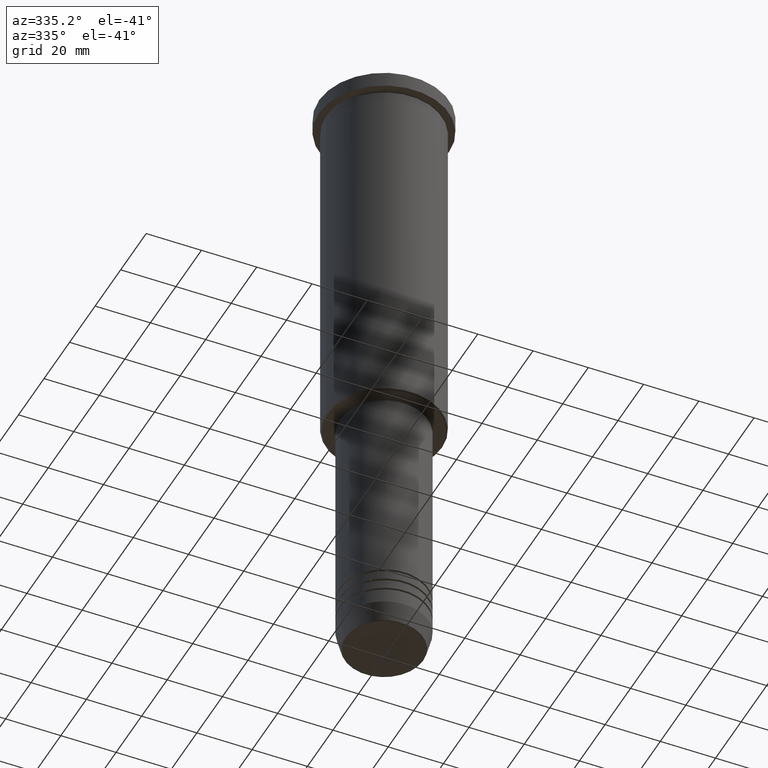
[diagram: clean part render]
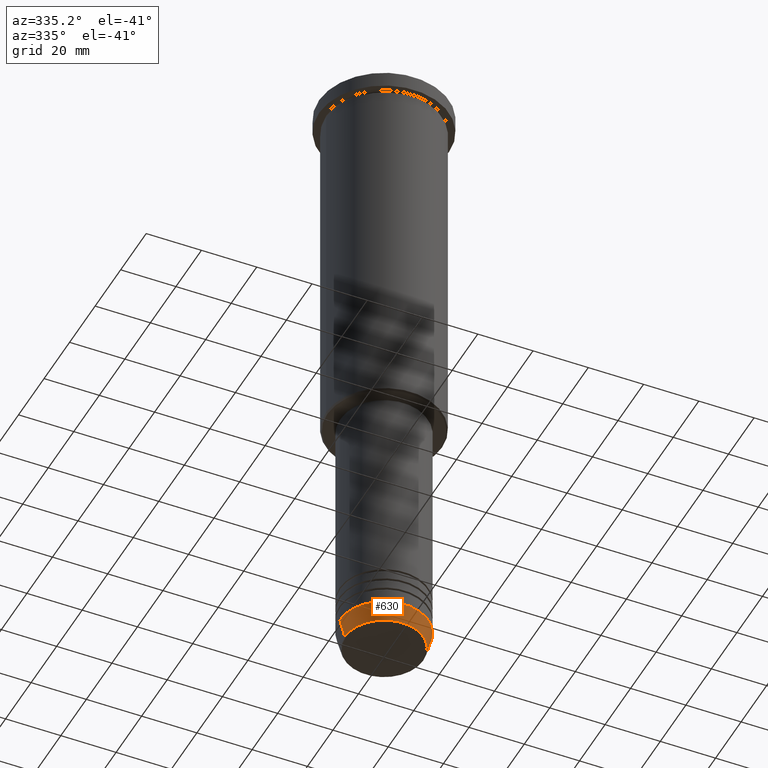
[diagram: same view with one face highlighted and labeled with its STEP entity id]
A machine part, auxiliary view. The second image highlights one B-rep face of the part: STEP entity #630.
In plain terms, the highlighted conical surface has half-angle 15 deg.
Its self-contained STEP definition (entity closure, byte-faithful):
#25 = VERTEX_POINT ( 'NONE', #523 ) ;
#40 = DIRECTION ( 'NONE',  ( -0.000000000000000000, -0.000000000000000000, 1.000000000000000000 ) ) ;
#46 = ORIENTED_EDGE ( 'NONE', *, *, #54, .F. ) ;
#54 = EDGE_CURVE ( 'NONE', #25, #579, #790, .T. ) ;
#59 = CARTESIAN_POINT ( 'NONE',  ( -16.00000000000000000, 1.959434878635765131E-15, -224.0000000000000284 ) ) ;
#93 = VECTOR ( 'NONE', #778, 1000.000000000000000 ) ;
#144 = CARTESIAN_POINT ( 'NONE',  ( 0.000000000000000000, 0.000000000000000000, -224.0000000000000284 ) ) ;
#156 = ORIENTED_EDGE ( 'NONE', *, *, #403, .T. ) ;
#215 = CARTESIAN_POINT ( 'NONE',  ( 14.22365507213718239, 0.000000000000000000, -230.6294095225512990 ) ) ;
#240 = DIRECTION ( 'NONE',  ( -0.2588190451025213501, 3.169619151431772337E-17, 0.9659258262890680902 ) ) ;
#250 = VECTOR ( 'NONE', #240, 1000.000000000000000 ) ;
#355 = DIRECTION ( 'NONE',  ( -0.000000000000000000, -0.000000000000000000, 1.000000000000000000 ) ) ;
#366 = DIRECTION ( 'NONE',  ( 1.000000000000000000, 0.000000000000000000, 0.000000000000000000 ) ) ;
#374 = ORIENTED_EDGE ( 'NONE', *, *, #1136, .F. ) ;
#403 = EDGE_CURVE ( 'NONE', #25, #860, #587, .T. ) ;
#417 = LINE ( 'NONE', #609, #93 ) ;
#523 = CARTESIAN_POINT ( 'NONE',  ( -14.22365507213718239, 1.850665122131322942E-15, -230.6294095225512990 ) ) ;
#579 = VERTEX_POINT ( 'NONE', #59 ) ;
#587 = CIRCLE ( 'NONE', #661, 14.22365507213718239 ) ;
#597 = VERTEX_POINT ( 'NONE', #974 ) ;
#606 = FACE_OUTER_BOUND ( 'NONE', #745, .T. ) ;
#609 = CARTESIAN_POINT ( 'NONE',  ( 16.00000000000000000, 0.000000000000000000, -224.0000000000000284 ) ) ;
#630 = ADVANCED_FACE ( 'NONE', ( #606 ), #855, .T. ) ;
#661 = AXIS2_PLACEMENT_3D ( 'NONE', #770, #40, #1046 ) ;
#731 = AXIS2_PLACEMENT_3D ( 'NONE', #144, #1065, #803 ) ;
#745 = EDGE_LOOP ( 'NONE', ( #46, #156, #1182, #374 ) ) ;
#770 = CARTESIAN_POINT ( 'NONE',  ( 0.000000000000000000, 0.000000000000000000, -230.6294095225512990 ) ) ;
#778 = DIRECTION ( 'NONE',  ( 0.2588190451025213501, 0.000000000000000000, 0.9659258262890680902 ) ) ;
#790 = LINE ( 'NONE', #1076, #250 ) ;
#803 = DIRECTION ( 'NONE',  ( 1.000000000000000000, 0.000000000000000000, 0.000000000000000000 ) ) ;
#855 = CONICAL_SURFACE ( 'NONE', #731, 16.00000000000000000, 0.2617993877991500740 ) ;
#860 = VERTEX_POINT ( 'NONE', #215 ) ;
#885 = AXIS2_PLACEMENT_3D ( 'NONE', #1082, #355, #366 ) ;
#974 = CARTESIAN_POINT ( 'NONE',  ( 16.00000000000000000, 0.000000000000000000, -224.0000000000000284 ) ) ;
#995 = EDGE_CURVE ( 'NONE', #860, #597, #417, .T. ) ;
#1046 = DIRECTION ( 'NONE',  ( 1.000000000000000000, 0.000000000000000000, 0.000000000000000000 ) ) ;
#1065 = DIRECTION ( 'NONE',  ( -0.000000000000000000, -0.000000000000000000, 1.000000000000000000 ) ) ;
#1076 = CARTESIAN_POINT ( 'NONE',  ( -16.00000000000000000, 1.959434878635765131E-15, -224.0000000000000284 ) ) ;
#1082 = CARTESIAN_POINT ( 'NONE',  ( 0.000000000000000000, 0.000000000000000000, -224.0000000000000284 ) ) ;
#1134 = CIRCLE ( 'NONE', #885, 16.00000000000000000 ) ;
#1136 = EDGE_CURVE ( 'NONE', #579, #597, #1134, .T. ) ;
#1182 = ORIENTED_EDGE ( 'NONE', *, *, #995, .T. ) ;